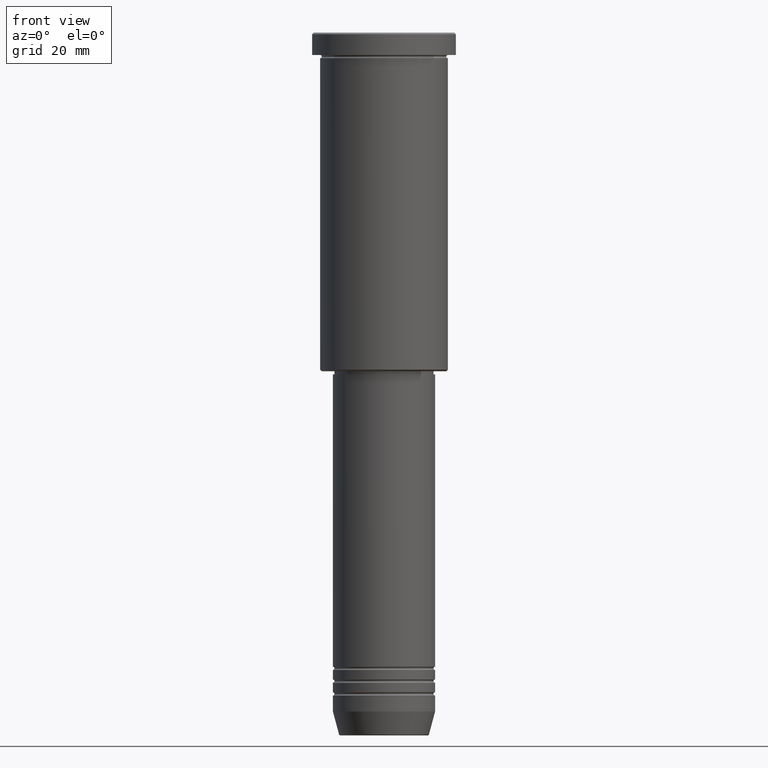
[diagram: clean part render]
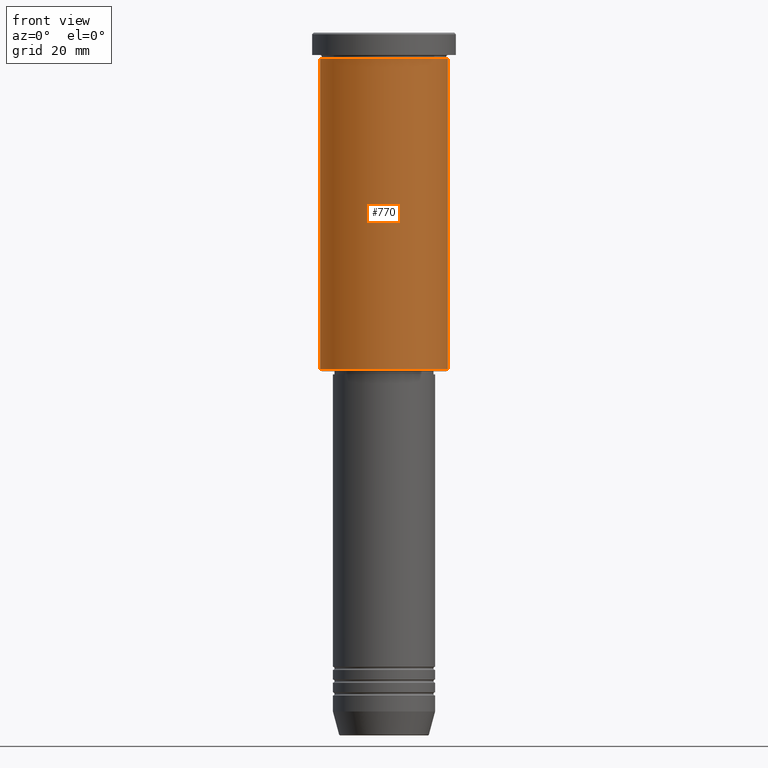
[diagram: same view with one face highlighted and labeled with its STEP entity id]
A machine part, front view. The second image highlights one B-rep face of the part: STEP entity #770.
In plain terms, the highlighted cylindrical surface (partial cylindrical patch) has radius 20 mm, axis along (-0, -0, 1).
Its self-contained STEP definition (entity closure, byte-faithful):
#53 = DIRECTION ( 'NONE',  ( -0.000000000000000000, -0.000000000000000000, 1.000000000000000000 ) ) ;
#56 = DIRECTION ( 'NONE',  ( -0.000000000000000000, -0.000000000000000000, 1.000000000000000000 ) ) ;
#157 = DIRECTION ( 'NONE',  ( -0.000000000000000000, -0.000000000000000000, 1.000000000000000000 ) ) ;
#159 = CARTESIAN_POINT ( 'NONE',  ( -20.00000000000000355, 2.449293598294706907E-15, 0.000000000000000000 ) ) ;
#162 = CARTESIAN_POINT ( 'NONE',  ( 0.000000000000000000, 0.000000000000000000, 0.000000000000000000 ) ) ;
#253 = EDGE_CURVE ( 'NONE', #364, #1099, #350, .T. ) ;
#263 = EDGE_CURVE ( 'NONE', #658, #907, #1010, .T. ) ;
#270 = EDGE_CURVE ( 'NONE', #1099, #907, #438, .T. ) ;
#300 = EDGE_CURVE ( 'NONE', #364, #658, #888, .T. ) ;
#335 = CARTESIAN_POINT ( 'NONE',  ( 0.000000000000000000, 0.000000000000000000, -7.999999999999994671 ) ) ;
#350 = CIRCLE ( 'NONE', #519, 20.00000000000000355 ) ;
#364 = VERTEX_POINT ( 'NONE', #531 ) ;
#415 = VECTOR ( 'NONE', #53, 1000.000000000000000 ) ;
#438 = LINE ( 'NONE', #878, #780 ) ;
#504 = AXIS2_PLACEMENT_3D ( 'NONE', #335, #806, #1172 ) ;
#519 = AXIS2_PLACEMENT_3D ( 'NONE', #708, #56, #1062 ) ;
#531 = CARTESIAN_POINT ( 'NONE',  ( -20.00000000000000355, 2.449293598294706907E-15, -105.4999999999999289 ) ) ;
#549 = CARTESIAN_POINT ( 'NONE',  ( 20.00000000000000000, 0.000000000000000000, -7.999999999999994671 ) ) ;
#572 = ORIENTED_EDGE ( 'NONE', *, *, #263, .F. ) ;
#589 = ORIENTED_EDGE ( 'NONE', *, *, #270, .T. ) ;
#604 = FACE_OUTER_BOUND ( 'NONE', #1078, .T. ) ;
#658 = VERTEX_POINT ( 'NONE', #1024 ) ;
#702 = AXIS2_PLACEMENT_3D ( 'NONE', #162, #157, #958 ) ;
#708 = CARTESIAN_POINT ( 'NONE',  ( 0.000000000000000000, 0.000000000000000000, -105.4999999999999289 ) ) ;
#730 = ORIENTED_EDGE ( 'NONE', *, *, #300, .F. ) ;
#770 = ADVANCED_FACE ( 'NONE', ( #604 ), #973, .T. ) ;
#780 = VECTOR ( 'NONE', #987, 1000.000000000000000 ) ;
#806 = DIRECTION ( 'NONE',  ( -0.000000000000000000, -0.000000000000000000, 1.000000000000000000 ) ) ;
#878 = CARTESIAN_POINT ( 'NONE',  ( 20.00000000000000355, 0.000000000000000000, 0.000000000000000000 ) ) ;
#888 = LINE ( 'NONE', #159, #415 ) ;
#907 = VERTEX_POINT ( 'NONE', #549 ) ;
#958 = DIRECTION ( 'NONE',  ( 1.000000000000000000, 0.000000000000000000, 0.000000000000000000 ) ) ;
#973 = CYLINDRICAL_SURFACE ( 'NONE', #702, 20.00000000000000355 ) ;
#987 = DIRECTION ( 'NONE',  ( -0.000000000000000000, -0.000000000000000000, 1.000000000000000000 ) ) ;
#998 = ORIENTED_EDGE ( 'NONE', *, *, #253, .T. ) ;
#1010 = CIRCLE ( 'NONE', #504, 20.00000000000000000 ) ;
#1024 = CARTESIAN_POINT ( 'NONE',  ( -20.00000000000000000, 2.449293598294706513E-15, -7.999999999999994671 ) ) ;
#1027 = CARTESIAN_POINT ( 'NONE',  ( 20.00000000000000355, 0.000000000000000000, -105.4999999999999289 ) ) ;
#1062 = DIRECTION ( 'NONE',  ( -1.000000000000000000, 0.000000000000000000, 0.000000000000000000 ) ) ;
#1078 = EDGE_LOOP ( 'NONE', ( #730, #998, #589, #572 ) ) ;
#1099 = VERTEX_POINT ( 'NONE', #1027 ) ;
#1172 = DIRECTION ( 'NONE',  ( 1.000000000000000000, 0.000000000000000000, 0.000000000000000000 ) ) ;